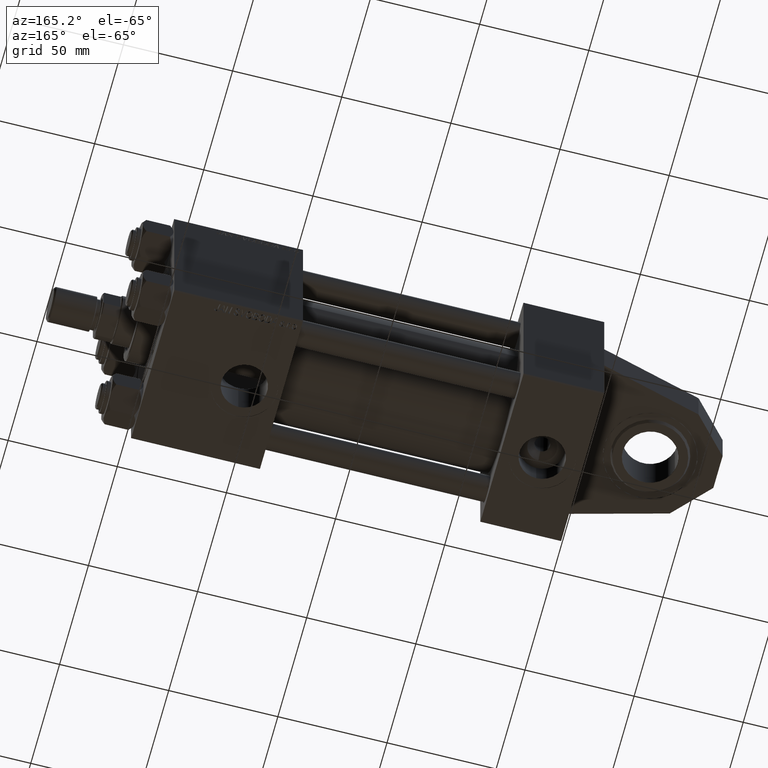
[diagram: clean part render]
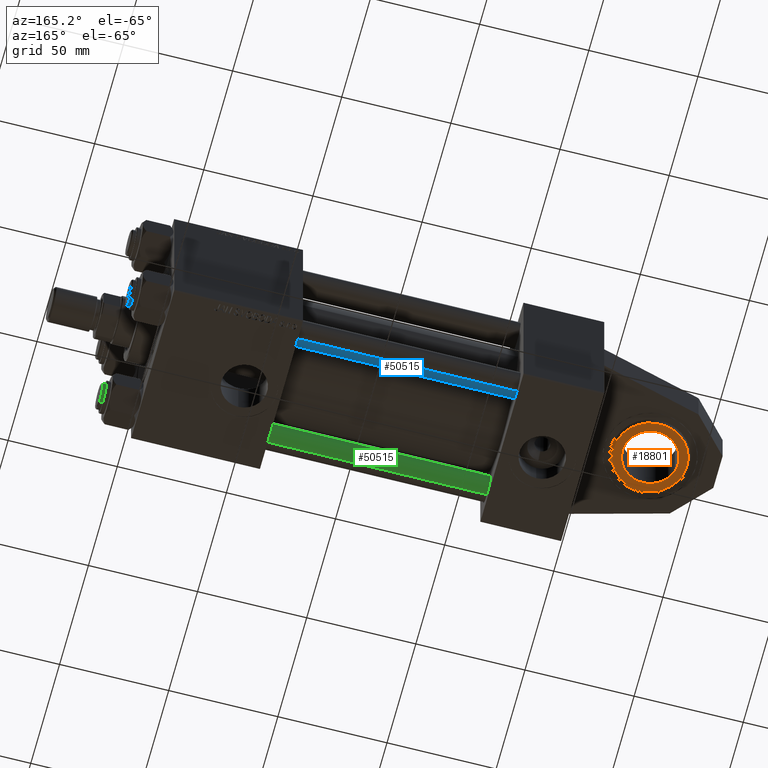
[diagram: same view with three faces highlighted in distinct colors, each labeled with its STEP entity id]
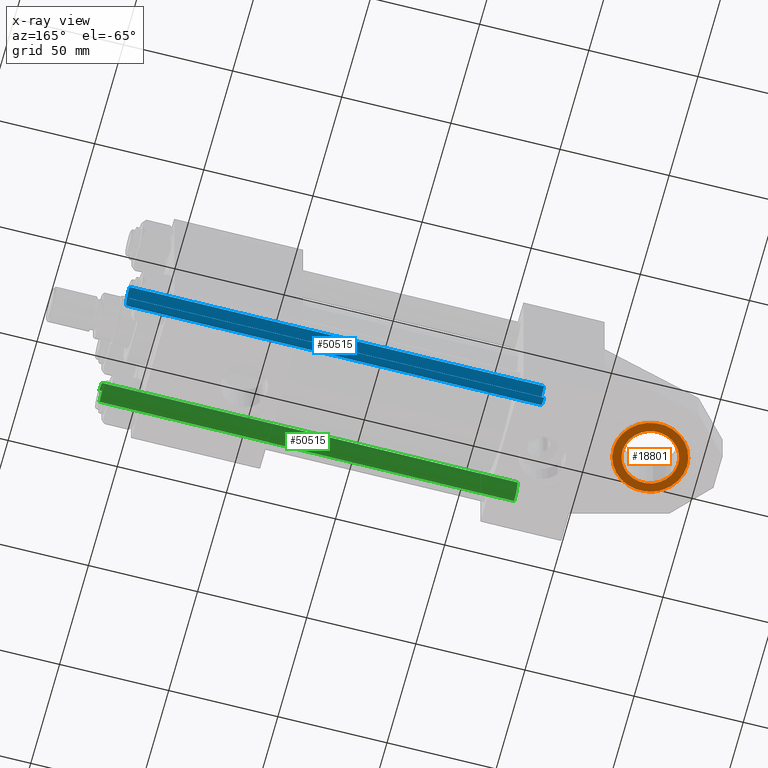
[diagram: x-ray of the same camera — body ghosted, the three highlighted faces saturated]
A machine part, auxiliary view with three faces highlighted in distinct colors.
The next image is the same camera in x-ray (body ghosted, the three faces saturated) — at least one of them is partly hidden behind the body in this view.
Their STEP definitions:

[orange] entity #18801 — the highlighted planar face has unit normal (0, 0, 1).
#765 = ORIENTED_EDGE ( 'NONE', *, *, #11869, .F. ) ;
#811 = CARTESIAN_POINT ( 'NONE',  ( -16.83256733381504588, 2.117571519582720522E-15, -10.00000000000000178 ) ) ;
#1718 = EDGE_LOOP ( 'NONE', ( #46365, #41602 ) ) ;
#3335 = CARTESIAN_POINT ( 'NONE',  ( 0.000000000000000000, 0.000000000000000000, -10.00000000000000178 ) ) ;
#5493 = CARTESIAN_POINT ( 'NONE',  ( 0.000000000000000000, 0.000000000000000000, -10.00000000000000178 ) ) ;
#6477 = VERTEX_POINT ( 'NONE', #49000 ) ;
#7840 = EDGE_CURVE ( 'NONE', #42620, #33510, #37997, .T. ) ;
#8928 = CARTESIAN_POINT ( 'NONE',  ( 0.000000000000000000, 0.000000000000000000, -10.00000000000000178 ) ) ;
#9072 = DIRECTION ( 'NONE',  ( -0.000000000000000000, -0.000000000000000000, 1.000000000000000000 ) ) ;
#11869 = EDGE_CURVE ( 'NONE', #6477, #13980, #13107, .T. ) ;
#12168 = PLANE ( 'NONE',  #15676 ) ;
#13107 = CIRCLE ( 'NONE', #40118, 16.83256733381504588 ) ;
#13980 = VERTEX_POINT ( 'NONE', #811 ) ;
#14350 = ORIENTED_EDGE ( 'NONE', *, *, #41770, .F. ) ;
#14995 = CARTESIAN_POINT ( 'NONE',  ( 12.80000000000000071, 0.000000000000000000, -10.00000000000000178 ) ) ;
#15070 = EDGE_LOOP ( 'NONE', ( #765, #14350 ) ) ;
#15676 = AXIS2_PLACEMENT_3D ( 'NONE', #24453, #47281, #39836 ) ;
#17467 = EDGE_CURVE ( 'NONE', #33510, #42620, #30488, .T. ) ;
#18801 = ADVANCED_FACE ( 'NONE', ( #20109, #39593 ), #12168, .F. ) ;
#20043 = CARTESIAN_POINT ( 'NONE',  ( 0.000000000000000000, 0.000000000000000000, -10.00000000000000178 ) ) ;
#20109 = FACE_BOUND ( 'NONE', #1718, .T. ) ;
#24453 = CARTESIAN_POINT ( 'NONE',  ( 0.000000000000000000, 12.50000000000000000, -10.00000000000000178 ) ) ;
#30488 = CIRCLE ( 'NONE', #48508, 12.80000000000000071 ) ;
#32070 = DIRECTION ( 'NONE',  ( 1.000000000000000000, 0.000000000000000000, 0.000000000000000000 ) ) ;
#32600 = AXIS2_PLACEMENT_3D ( 'NONE', #3335, #47117, #34569 ) ;
#32630 = DIRECTION ( 'NONE',  ( 1.000000000000000000, 0.000000000000000000, 0.000000000000000000 ) ) ;
#33510 = VERTEX_POINT ( 'NONE', #14995 ) ;
#33822 = CARTESIAN_POINT ( 'NONE',  ( -12.80000000000000071, 1.567547902908612184E-15, -10.00000000000000178 ) ) ;
#34569 = DIRECTION ( 'NONE',  ( 1.000000000000000000, 0.000000000000000000, 0.000000000000000000 ) ) ;
#35822 = DIRECTION ( 'NONE',  ( 1.000000000000000000, 0.000000000000000000, 0.000000000000000000 ) ) ;
#35851 = CIRCLE ( 'NONE', #32600, 16.83256733381504588 ) ;
#37997 = CIRCLE ( 'NONE', #41259, 12.80000000000000071 ) ;
#39593 = FACE_OUTER_BOUND ( 'NONE', #15070, .T. ) ;
#39836 = DIRECTION ( 'NONE',  ( 1.000000000000000000, 0.000000000000000000, 0.000000000000000000 ) ) ;
#40118 = AXIS2_PLACEMENT_3D ( 'NONE', #5493, #9072, #32630 ) ;
#41259 = AXIS2_PLACEMENT_3D ( 'NONE', #20043, #46971, #32070 ) ;
#41602 = ORIENTED_EDGE ( 'NONE', *, *, #7840, .T. ) ;
#41770 = EDGE_CURVE ( 'NONE', #13980, #6477, #35851, .T. ) ;
#42620 = VERTEX_POINT ( 'NONE', #33822 ) ;
#44300 = DIRECTION ( 'NONE',  ( -0.000000000000000000, -0.000000000000000000, 1.000000000000000000 ) ) ;
#46365 = ORIENTED_EDGE ( 'NONE', *, *, #17467, .T. ) ;
#46971 = DIRECTION ( 'NONE',  ( -0.000000000000000000, -0.000000000000000000, 1.000000000000000000 ) ) ;
#47117 = DIRECTION ( 'NONE',  ( -0.000000000000000000, -0.000000000000000000, 1.000000000000000000 ) ) ;
#47281 = DIRECTION ( 'NONE',  ( 0.000000000000000000, -0.000000000000000000, 1.000000000000000000 ) ) ;
#48508 = AXIS2_PLACEMENT_3D ( 'NONE', #8928, #44300, #35822 ) ;
#49000 = CARTESIAN_POINT ( 'NONE',  ( 16.83256733381504588, 0.000000000000000000, -10.00000000000000178 ) ) ;

[blue] entity #50515 — the highlighted cylindrical surface (edge-blend (fillet) strip) has radius 6 mm, axis along (-1, -0, 0).
#1020 = EDGE_CURVE ( 'NONE', #37139, #26774, #14750, .T. ) ;
#1397 = DIRECTION ( 'NONE',  ( 0.000000000000000000, 0.000000000000000000, -1.000000000000000000 ) ) ;
#4203 = DIRECTION ( 'NONE',  ( -0.000000000000000000, -0.000000000000000000, -1.000000000000000000 ) ) ;
#4972 = AXIS2_PLACEMENT_3D ( 'NONE', #32230, #12756, #5095 ) ;
#5095 = DIRECTION ( 'NONE',  ( 1.000000000000000000, 0.000000000000000000, 0.000000000000000000 ) ) ;
#7025 = CARTESIAN_POINT ( 'NONE',  ( -6.000000000000000888, 0.000000000000000000, 190.5000000000000284 ) ) ;
#7527 = EDGE_LOOP ( 'NONE', ( #8824, #39285, #20330, #47780 ) ) ;
#8824 = ORIENTED_EDGE ( 'NONE', *, *, #29956, .F. ) ;
#10735 = CIRCLE ( 'NONE', #25457, 6.000000000000000888 ) ;
#12365 = FACE_OUTER_BOUND ( 'NONE', #7527, .T. ) ;
#12549 = EDGE_CURVE ( 'NONE', #15775, #37139, #41160, .T. ) ;
#12756 = DIRECTION ( 'NONE',  ( -0.000000000000000000, -0.000000000000000000, 1.000000000000000000 ) ) ;
#14750 = CIRCLE ( 'NONE', #4972, 6.000000000000000888 ) ;
#15014 = VERTEX_POINT ( 'NONE', #49738 ) ;
#15775 = VERTEX_POINT ( 'NONE', #7025 ) ;
#17311 = CARTESIAN_POINT ( 'NONE',  ( -6.000000000000000888, 0.000000000000000000, 0.4999999999999449329 ) ) ;
#17367 = AXIS2_PLACEMENT_3D ( 'NONE', #39281, #4203, #35441 ) ;
#18350 = CARTESIAN_POINT ( 'NONE',  ( -6.000000000000000888, 0.000000000000000000, 191.0000000000000000 ) ) ;
#19710 = CARTESIAN_POINT ( 'NONE',  ( 6.000000000000000888, 7.347880794884120722E-16, 191.0000000000000000 ) ) ;
#20330 = ORIENTED_EDGE ( 'NONE', *, *, #12549, .T. ) ;
#24597 = VECTOR ( 'NONE', #37297, 1000.000000000000000 ) ;
#25024 = VECTOR ( 'NONE', #43541, 1000.000000000000000 ) ;
#25457 = AXIS2_PLACEMENT_3D ( 'NONE', #28512, #1397, #40581 ) ;
#26774 = VERTEX_POINT ( 'NONE', #41812 ) ;
#28512 = CARTESIAN_POINT ( 'NONE',  ( 0.000000000000000000, 0.000000000000000000, 190.5000000000000284 ) ) ;
#29956 = EDGE_CURVE ( 'NONE', #15014, #26774, #36080, .T. ) ;
#32093 = CYLINDRICAL_SURFACE ( 'NONE', #17367, 6.000000000000000888 ) ;
#32230 = CARTESIAN_POINT ( 'NONE',  ( 0.000000000000000000, 0.000000000000000000, 0.4999999999999449329 ) ) ;
#35441 = DIRECTION ( 'NONE',  ( -1.000000000000000000, 0.000000000000000000, 0.000000000000000000 ) ) ;
#36080 = LINE ( 'NONE', #19710, #25024 ) ;
#37139 = VERTEX_POINT ( 'NONE', #17311 ) ;
#37297 = DIRECTION ( 'NONE',  ( -0.000000000000000000, -0.000000000000000000, -1.000000000000000000 ) ) ;
#39281 = CARTESIAN_POINT ( 'NONE',  ( 0.000000000000000000, 0.000000000000000000, 191.0000000000000000 ) ) ;
#39285 = ORIENTED_EDGE ( 'NONE', *, *, #48109, .T. ) ;
#40581 = DIRECTION ( 'NONE',  ( 1.000000000000000000, 0.000000000000000000, 0.000000000000000000 ) ) ;
#41160 = LINE ( 'NONE', #18350, #24597 ) ;
#41812 = CARTESIAN_POINT ( 'NONE',  ( 6.000000000000000888, 7.347880794884120722E-16, 0.4999999999999449329 ) ) ;
#43541 = DIRECTION ( 'NONE',  ( -0.000000000000000000, -0.000000000000000000, -1.000000000000000000 ) ) ;
#47780 = ORIENTED_EDGE ( 'NONE', *, *, #1020, .T. ) ;
#48109 = EDGE_CURVE ( 'NONE', #15014, #15775, #10735, .T. ) ;
#49738 = CARTESIAN_POINT ( 'NONE',  ( 6.000000000000000888, 7.347880794884120722E-16, 190.5000000000000284 ) ) ;
#50515 = ADVANCED_FACE ( 'NONE', ( #12365 ), #32093, .T. ) ;

[green] entity #50515 — the highlighted cylindrical surface (edge-blend (fillet) strip) has radius 6 mm, axis along (1, -0, -0).
#1020 = EDGE_CURVE ( 'NONE', #37139, #26774, #14750, .T. ) ;
#1397 = DIRECTION ( 'NONE',  ( 0.000000000000000000, 0.000000000000000000, -1.000000000000000000 ) ) ;
#4203 = DIRECTION ( 'NONE',  ( -0.000000000000000000, -0.000000000000000000, -1.000000000000000000 ) ) ;
#4972 = AXIS2_PLACEMENT_3D ( 'NONE', #32230, #12756, #5095 ) ;
#5095 = DIRECTION ( 'NONE',  ( 1.000000000000000000, 0.000000000000000000, 0.000000000000000000 ) ) ;
#7025 = CARTESIAN_POINT ( 'NONE',  ( -6.000000000000000888, 0.000000000000000000, 190.5000000000000284 ) ) ;
#7527 = EDGE_LOOP ( 'NONE', ( #8824, #39285, #20330, #47780 ) ) ;
#8824 = ORIENTED_EDGE ( 'NONE', *, *, #29956, .F. ) ;
#10735 = CIRCLE ( 'NONE', #25457, 6.000000000000000888 ) ;
#12365 = FACE_OUTER_BOUND ( 'NONE', #7527, .T. ) ;
#12549 = EDGE_CURVE ( 'NONE', #15775, #37139, #41160, .T. ) ;
#12756 = DIRECTION ( 'NONE',  ( -0.000000000000000000, -0.000000000000000000, 1.000000000000000000 ) ) ;
#14750 = CIRCLE ( 'NONE', #4972, 6.000000000000000888 ) ;
#15014 = VERTEX_POINT ( 'NONE', #49738 ) ;
#15775 = VERTEX_POINT ( 'NONE', #7025 ) ;
#17311 = CARTESIAN_POINT ( 'NONE',  ( -6.000000000000000888, 0.000000000000000000, 0.4999999999999449329 ) ) ;
#17367 = AXIS2_PLACEMENT_3D ( 'NONE', #39281, #4203, #35441 ) ;
#18350 = CARTESIAN_POINT ( 'NONE',  ( -6.000000000000000888, 0.000000000000000000, 191.0000000000000000 ) ) ;
#19710 = CARTESIAN_POINT ( 'NONE',  ( 6.000000000000000888, 7.347880794884120722E-16, 191.0000000000000000 ) ) ;
#20330 = ORIENTED_EDGE ( 'NONE', *, *, #12549, .T. ) ;
#24597 = VECTOR ( 'NONE', #37297, 1000.000000000000000 ) ;
#25024 = VECTOR ( 'NONE', #43541, 1000.000000000000000 ) ;
#25457 = AXIS2_PLACEMENT_3D ( 'NONE', #28512, #1397, #40581 ) ;
#26774 = VERTEX_POINT ( 'NONE', #41812 ) ;
#28512 = CARTESIAN_POINT ( 'NONE',  ( 0.000000000000000000, 0.000000000000000000, 190.5000000000000284 ) ) ;
#29956 = EDGE_CURVE ( 'NONE', #15014, #26774, #36080, .T. ) ;
#32093 = CYLINDRICAL_SURFACE ( 'NONE', #17367, 6.000000000000000888 ) ;
#32230 = CARTESIAN_POINT ( 'NONE',  ( 0.000000000000000000, 0.000000000000000000, 0.4999999999999449329 ) ) ;
#35441 = DIRECTION ( 'NONE',  ( -1.000000000000000000, 0.000000000000000000, 0.000000000000000000 ) ) ;
#36080 = LINE ( 'NONE', #19710, #25024 ) ;
#37139 = VERTEX_POINT ( 'NONE', #17311 ) ;
#37297 = DIRECTION ( 'NONE',  ( -0.000000000000000000, -0.000000000000000000, -1.000000000000000000 ) ) ;
#39281 = CARTESIAN_POINT ( 'NONE',  ( 0.000000000000000000, 0.000000000000000000, 191.0000000000000000 ) ) ;
#39285 = ORIENTED_EDGE ( 'NONE', *, *, #48109, .T. ) ;
#40581 = DIRECTION ( 'NONE',  ( 1.000000000000000000, 0.000000000000000000, 0.000000000000000000 ) ) ;
#41160 = LINE ( 'NONE', #18350, #24597 ) ;
#41812 = CARTESIAN_POINT ( 'NONE',  ( 6.000000000000000888, 7.347880794884120722E-16, 0.4999999999999449329 ) ) ;
#43541 = DIRECTION ( 'NONE',  ( -0.000000000000000000, -0.000000000000000000, -1.000000000000000000 ) ) ;
#47780 = ORIENTED_EDGE ( 'NONE', *, *, #1020, .T. ) ;
#48109 = EDGE_CURVE ( 'NONE', #15014, #15775, #10735, .T. ) ;
#49738 = CARTESIAN_POINT ( 'NONE',  ( 6.000000000000000888, 7.347880794884120722E-16, 190.5000000000000284 ) ) ;
#50515 = ADVANCED_FACE ( 'NONE', ( #12365 ), #32093, .T. ) ;